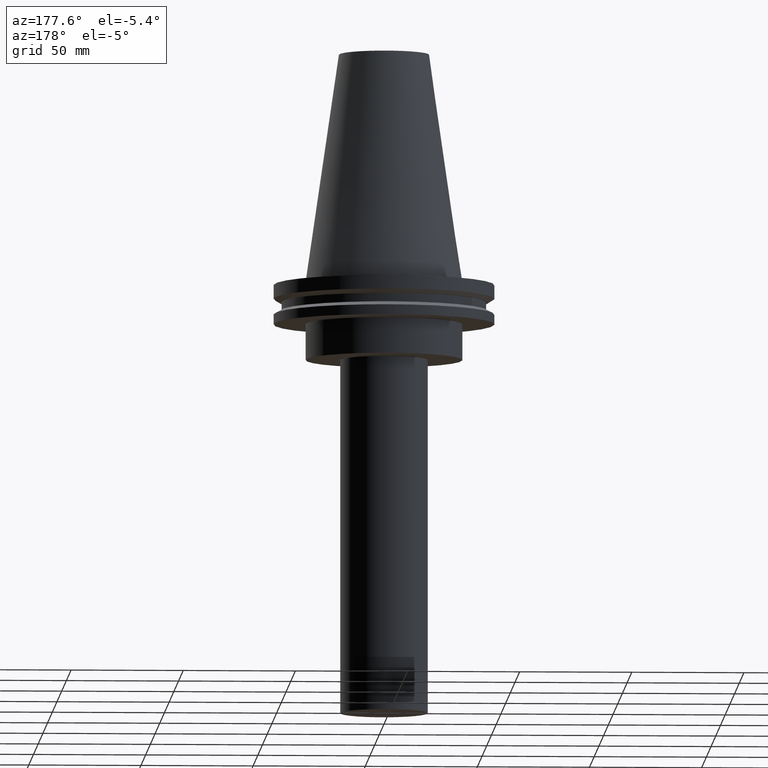
[diagram: clean part render]
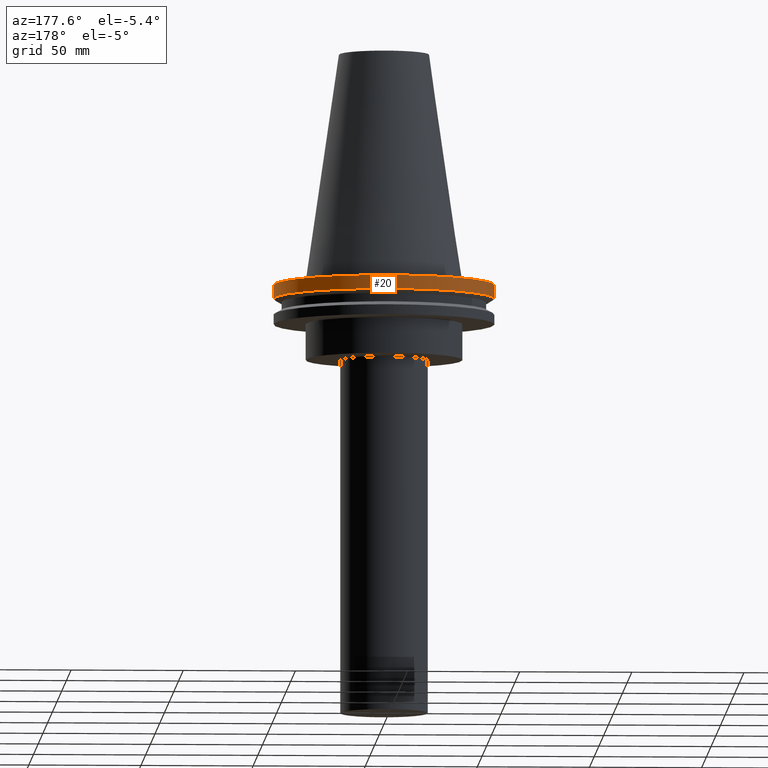
[diagram: same view with one face highlighted and labeled with its STEP entity id]
A machine part, auxiliary view. The second image highlights one B-rep face of the part: STEP entity #20.
In plain terms, the highlighted cylindrical surface (bore or boss wall) has radius 49.215 mm, axis along (-0, -0, 1).
Its self-contained STEP definition (entity closure, byte-faithful):
#20 = ADVANCED_FACE ( 'NONE', ( #186, #113 ), #60, .T. ) ;
#28 = AXIS2_PLACEMENT_3D ( 'NONE', #298, #109, #387 ) ;
#38 = DIRECTION ( 'NONE',  ( -0.000000000000000000, -0.000000000000000000, 1.000000000000000000 ) ) ;
#60 = CYLINDRICAL_SURFACE ( 'NONE', #355, 49.21499999999999631 ) ;
#81 = VERTEX_POINT ( 'NONE', #112 ) ;
#91 = CIRCLE ( 'NONE', #28, 49.21499999999999631 ) ;
#109 = DIRECTION ( 'NONE',  ( -0.000000000000000000, -0.000000000000000000, 1.000000000000000000 ) ) ;
#112 = CARTESIAN_POINT ( 'NONE',  ( 49.21500000000000341, 0.000000000000000000, -7.602389855251287187 ) ) ;
#113 = FACE_OUTER_BOUND ( 'NONE', #343, .T. ) ;
#116 = ORIENTED_EDGE ( 'NONE', *, *, #320, .F. ) ;
#117 = VERTEX_POINT ( 'NONE', #276 ) ;
#148 = ORIENTED_EDGE ( 'NONE', *, *, #378, .T. ) ;
#153 = DIRECTION ( 'NONE',  ( 1.000000000000000000, 0.000000000000000000, 0.000000000000000000 ) ) ;
#186 = FACE_OUTER_BOUND ( 'NONE', #331, .T. ) ;
#260 = CARTESIAN_POINT ( 'NONE',  ( 0.000000000000000000, 0.000000000000000000, -7.602389855251287187 ) ) ;
#276 = CARTESIAN_POINT ( 'NONE',  ( 49.21499999999999631, 0.000000000000000000, -1.499999999999987566 ) ) ;
#298 = CARTESIAN_POINT ( 'NONE',  ( 0.000000000000000000, 0.000000000000000000, -1.499999999999987566 ) ) ;
#320 = EDGE_CURVE ( 'NONE', #117, #117, #91, .T. ) ;
#331 = EDGE_LOOP ( 'NONE', ( #116 ) ) ;
#343 = EDGE_LOOP ( 'NONE', ( #148 ) ) ;
#346 = AXIS2_PLACEMENT_3D ( 'NONE', #260, #359, #384 ) ;
#354 = CIRCLE ( 'NONE', #346, 49.21500000000000341 ) ;
#355 = AXIS2_PLACEMENT_3D ( 'NONE', #367, #38, #153 ) ;
#359 = DIRECTION ( 'NONE',  ( -0.000000000000000000, -0.000000000000000000, 1.000000000000000000 ) ) ;
#367 = CARTESIAN_POINT ( 'NONE',  ( 0.000000000000000000, 0.000000000000000000, 101.5999999999999943 ) ) ;
#378 = EDGE_CURVE ( 'NONE', #81, #81, #354, .T. ) ;
#384 = DIRECTION ( 'NONE',  ( 1.000000000000000000, 0.000000000000000000, 0.000000000000000000 ) ) ;
#387 = DIRECTION ( 'NONE',  ( 1.000000000000000000, 0.000000000000000000, 0.000000000000000000 ) ) ;